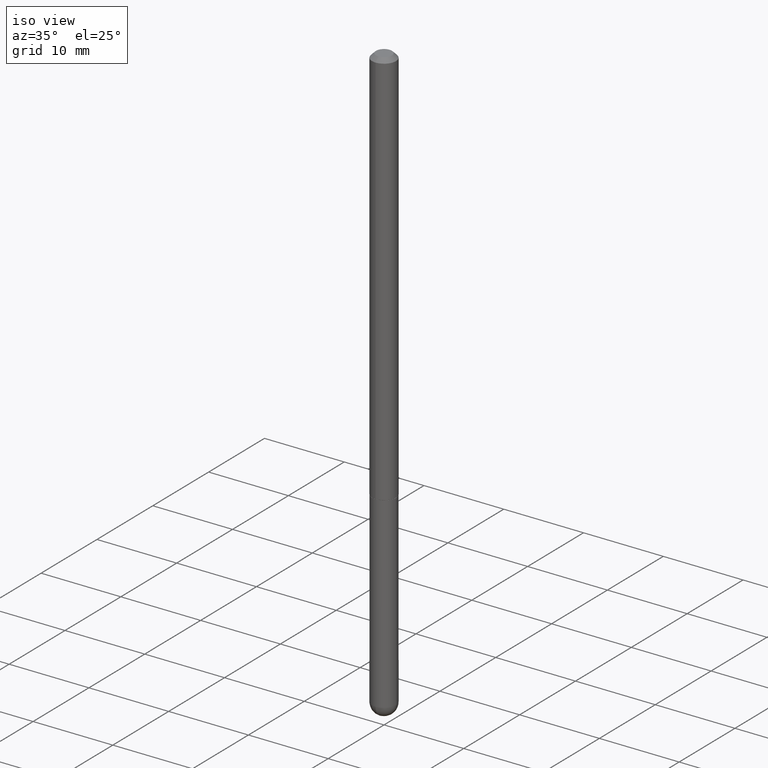
[diagram: clean part render]
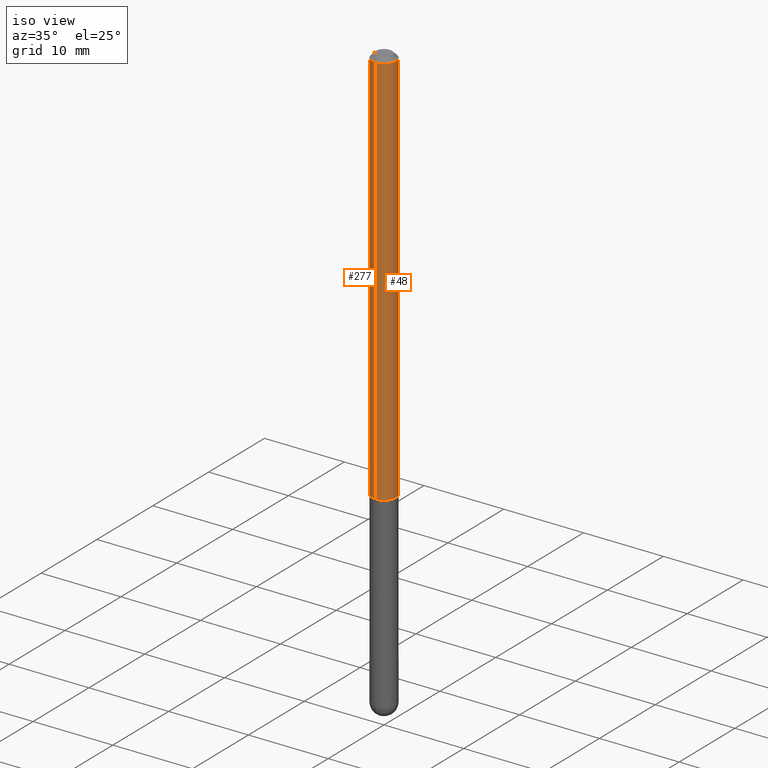
[diagram: same view with one multi-face feature highlighted, each face labeled with its STEP entity id]
A machine part, iso view. The highlighted faces form ONE feature: a constant-radius fillet chain: 2 tangent blend faces with common blend radius 1.4999 mm. The faces share edges in the B-rep.
Their STEP definitions:
[1] entity #48 (Cylinder):
#36 = FACE_OUTER_BOUND ( 'NONE', #234, .T. ) ;
#41 = ORIENTED_EDGE ( 'NONE', *, *, #380, .F. ) ;
#48 = ADVANCED_FACE ( 'NONE', ( #36 ), #136, .T. ) ;
#74 = VERTEX_POINT ( 'NONE', #370 ) ;
#87 = DIRECTION ( 'NONE',  ( -2.452606242276134078E-29, 3.481260124123204048E-15, 1.000000000000000000 ) ) ;
#94 = LINE ( 'NONE', #222, #217 ) ;
#109 = DIRECTION ( 'NONE',  ( -2.452606242276133797E-29, 3.481260124123203654E-15, 1.000000000000000000 ) ) ;
#114 = EDGE_CURVE ( 'NONE', #74, #161, #218, .T. ) ;
#124 = VECTOR ( 'NONE', #87, 39.37007874015748143 ) ;
#126 = DIRECTION ( 'NONE',  ( -6.982962677686265922E-15, -1.000000000000000000, 3.469747663417776213E-15 ) ) ;
#136 = CYLINDRICAL_SURFACE ( 'NONE', #177, 0.05905000000000010935 ) ;
#142 = VERTEX_POINT ( 'NONE', #210 ) ;
#147 = CARTESIAN_POINT ( 'NONE',  ( 4.123439461173745750E-16, 0.05904999999999994975, -0.02000000000000027450 ) ) ;
#161 = VERTEX_POINT ( 'NONE', #147 ) ;
#169 = CARTESIAN_POINT ( 'NONE',  ( 0.000000000000000000, 0.000000000000000000, 0.000000000000000000 ) ) ;
#173 = ORIENTED_EDGE ( 'NONE', *, *, #356, .T. ) ;
#177 = AXIS2_PLACEMENT_3D ( 'NONE', #169, #109, #267 ) ;
#183 = CARTESIAN_POINT ( 'NONE',  ( 4.825502781678292621E-29, -6.849379294212400691E-15, -1.967499999999999805 ) ) ;
#192 = DIRECTION ( 'NONE',  ( -6.982962677686265922E-15, -1.000000000000000000, 4.626330217890353559E-15 ) ) ;
#209 = AXIS2_PLACEMENT_3D ( 'NONE', #183, #376, #192 ) ;
#210 = CARTESIAN_POINT ( 'NONE',  ( -4.123439461173271448E-16, -0.05905000000000704824, -1.967499999999999361 ) ) ;
#217 = VECTOR ( 'NONE', #412, 39.37007874015748143 ) ;
#218 = LINE ( 'NONE', #309, #124 ) ;
#222 = CARTESIAN_POINT ( 'NONE',  ( -4.123439461173747722E-16, -0.05905000000000010935, 2.055684103294755676E-16 ) ) ;
#234 = EDGE_LOOP ( 'NONE', ( #173, #350, #344, #41 ) ) ;
#260 = DIRECTION ( 'NONE',  ( -2.452606242276133797E-29, 3.481260124123203654E-15, 1.000000000000000000 ) ) ;
#267 = DIRECTION ( 'NONE',  ( -6.982962677686265922E-15, -1.000000000000000000, 3.481260124123203654E-15 ) ) ;
#283 = CARTESIAN_POINT ( 'NONE',  ( -4.051124067684085231E-16, -0.05905000000000008159, -0.01999999999999986511 ) ) ;
#306 = CIRCLE ( 'NONE', #362, 0.05905000000000001914 ) ;
#309 = CARTESIAN_POINT ( 'NONE',  ( 4.195754854663398874E-16, 0.05905000000000010935, -2.055684103294755676E-16 ) ) ;
#344 = ORIENTED_EDGE ( 'NONE', *, *, #387, .F. ) ;
#349 = VERTEX_POINT ( 'NONE', #283 ) ;
#350 = ORIENTED_EDGE ( 'NONE', *, *, #114, .T. ) ;
#356 = EDGE_CURVE ( 'NONE', #142, #74, #394, .T. ) ;
#362 = AXIS2_PLACEMENT_3D ( 'NONE', #409, #260, #126 ) ;
#370 = CARTESIAN_POINT ( 'NONE',  ( 4.195754854663646379E-16, 0.05904999999999335780, -1.967500000000000027 ) ) ;
#376 = DIRECTION ( 'NONE',  ( -2.452606242276133797E-29, 3.481260124123203654E-15, 1.000000000000000000 ) ) ;
#380 = EDGE_CURVE ( 'NONE', #142, #349, #94, .T. ) ;
#387 = EDGE_CURVE ( 'NONE', #349, #161, #306, .T. ) ;
#394 = CIRCLE ( 'NONE', #209, 0.05905000000000020649 ) ;
#409 = CARTESIAN_POINT ( 'NONE',  ( 4.905212484552284025E-31, -6.962520248246431022E-17, -0.02000000000000006981 ) ) ;
#412 = DIRECTION ( 'NONE',  ( -2.452606242276134078E-29, 3.481260124123204048E-15, 1.000000000000000000 ) ) ;
[2] entity #277 (Cylinder):
#13 = ORIENTED_EDGE ( 'NONE', *, *, #106, .F. ) ;
#16 = DIRECTION ( 'NONE',  ( -6.982962677686265922E-15, -1.000000000000000000, 3.469747663417776213E-15 ) ) ;
#25 = EDGE_LOOP ( 'NONE', ( #62, #389, #359, #13 ) ) ;
#42 = AXIS2_PLACEMENT_3D ( 'NONE', #97, #377, #230 ) ;
#62 = ORIENTED_EDGE ( 'NONE', *, *, #114, .F. ) ;
#74 = VERTEX_POINT ( 'NONE', #370 ) ;
#87 = DIRECTION ( 'NONE',  ( -2.452606242276134078E-29, 3.481260124123204048E-15, 1.000000000000000000 ) ) ;
#94 = LINE ( 'NONE', #222, #217 ) ;
#97 = CARTESIAN_POINT ( 'NONE',  ( 4.825502781678292621E-29, -6.849379294212400691E-15, -1.967499999999999805 ) ) ;
#106 = EDGE_CURVE ( 'NONE', #161, #349, #392, .T. ) ;
#114 = EDGE_CURVE ( 'NONE', #74, #161, #218, .T. ) ;
#123 = FACE_OUTER_BOUND ( 'NONE', #25, .T. ) ;
#124 = VECTOR ( 'NONE', #87, 39.37007874015748143 ) ;
#142 = VERTEX_POINT ( 'NONE', #210 ) ;
#147 = CARTESIAN_POINT ( 'NONE',  ( 4.123439461173745750E-16, 0.05904999999999994975, -0.02000000000000027450 ) ) ;
#161 = VERTEX_POINT ( 'NONE', #147 ) ;
#210 = CARTESIAN_POINT ( 'NONE',  ( -4.123439461173271448E-16, -0.05905000000000704824, -1.967499999999999361 ) ) ;
#217 = VECTOR ( 'NONE', #412, 39.37007874015748143 ) ;
#218 = LINE ( 'NONE', #309, #124 ) ;
#222 = CARTESIAN_POINT ( 'NONE',  ( -4.123439461173747722E-16, -0.05905000000000010935, 2.055684103294755676E-16 ) ) ;
#230 = DIRECTION ( 'NONE',  ( -6.982962677686265922E-15, -1.000000000000000000, 4.626330217890353559E-15 ) ) ;
#277 = ADVANCED_FACE ( 'NONE', ( #123 ), #317, .T. ) ;
#281 = CIRCLE ( 'NONE', #42, 0.05905000000000020649 ) ;
#283 = CARTESIAN_POINT ( 'NONE',  ( -4.051124067684085231E-16, -0.05905000000000008159, -0.01999999999999986511 ) ) ;
#305 = AXIS2_PLACEMENT_3D ( 'NONE', #342, #404, #16 ) ;
#309 = CARTESIAN_POINT ( 'NONE',  ( 4.195754854663398874E-16, 0.05905000000000010935, -2.055684103294755676E-16 ) ) ;
#313 = DIRECTION ( 'NONE',  ( -6.982962677686265922E-15, -1.000000000000000000, 3.481260124123203654E-15 ) ) ;
#317 = CYLINDRICAL_SURFACE ( 'NONE', #353, 0.05905000000000010935 ) ;
#342 = CARTESIAN_POINT ( 'NONE',  ( 4.905212484552284025E-31, -6.962520248246431022E-17, -0.02000000000000006981 ) ) ;
#343 = CARTESIAN_POINT ( 'NONE',  ( 0.000000000000000000, 0.000000000000000000, 0.000000000000000000 ) ) ;
#349 = VERTEX_POINT ( 'NONE', #283 ) ;
#353 = AXIS2_PLACEMENT_3D ( 'NONE', #343, #379, #313 ) ;
#359 = ORIENTED_EDGE ( 'NONE', *, *, #380, .T. ) ;
#370 = CARTESIAN_POINT ( 'NONE',  ( 4.195754854663646379E-16, 0.05904999999999335780, -1.967500000000000027 ) ) ;
#377 = DIRECTION ( 'NONE',  ( -2.452606242276133797E-29, 3.481260124123203654E-15, 1.000000000000000000 ) ) ;
#379 = DIRECTION ( 'NONE',  ( -2.452606242276133797E-29, 3.481260124123203654E-15, 1.000000000000000000 ) ) ;
#380 = EDGE_CURVE ( 'NONE', #142, #349, #94, .T. ) ;
#389 = ORIENTED_EDGE ( 'NONE', *, *, #411, .T. ) ;
#392 = CIRCLE ( 'NONE', #305, 0.05905000000000001914 ) ;
#404 = DIRECTION ( 'NONE',  ( -2.452606242276133797E-29, 3.481260124123203654E-15, 1.000000000000000000 ) ) ;
#411 = EDGE_CURVE ( 'NONE', #74, #142, #281, .T. ) ;
#412 = DIRECTION ( 'NONE',  ( -2.452606242276134078E-29, 3.481260124123204048E-15, 1.000000000000000000 ) ) ;